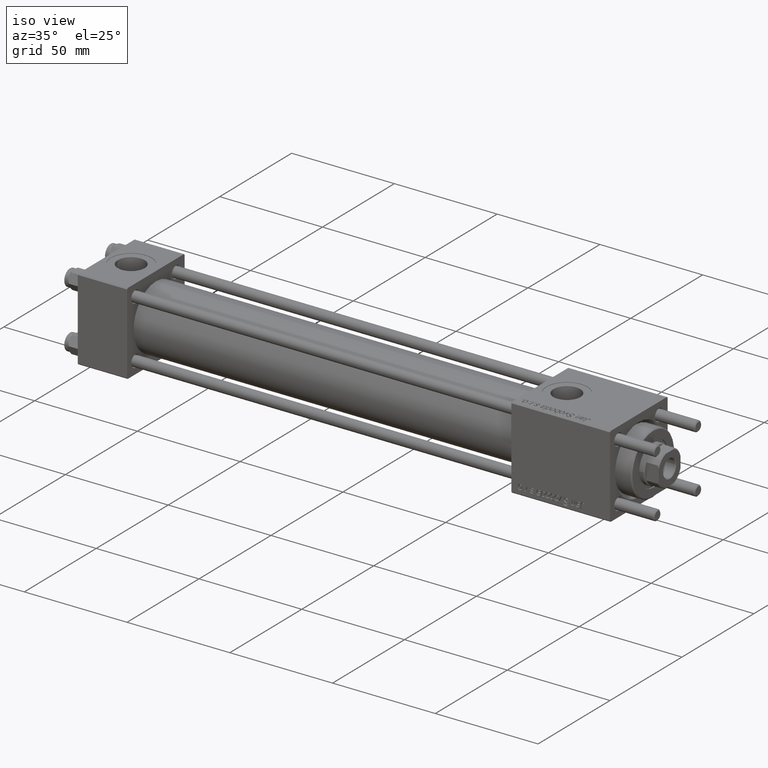
[diagram: clean part render]
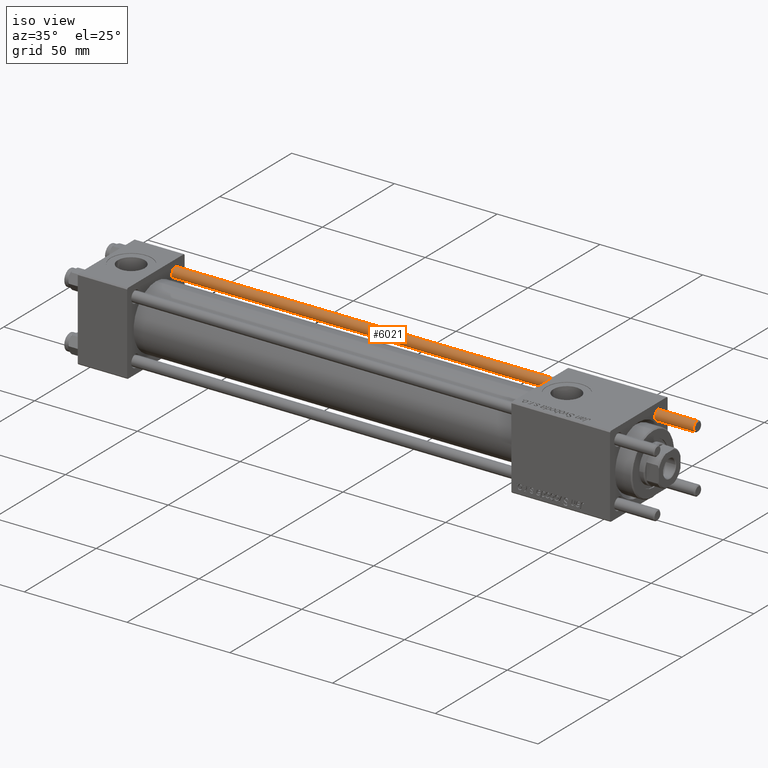
[diagram: same view with one face highlighted and labeled with its STEP entity id]
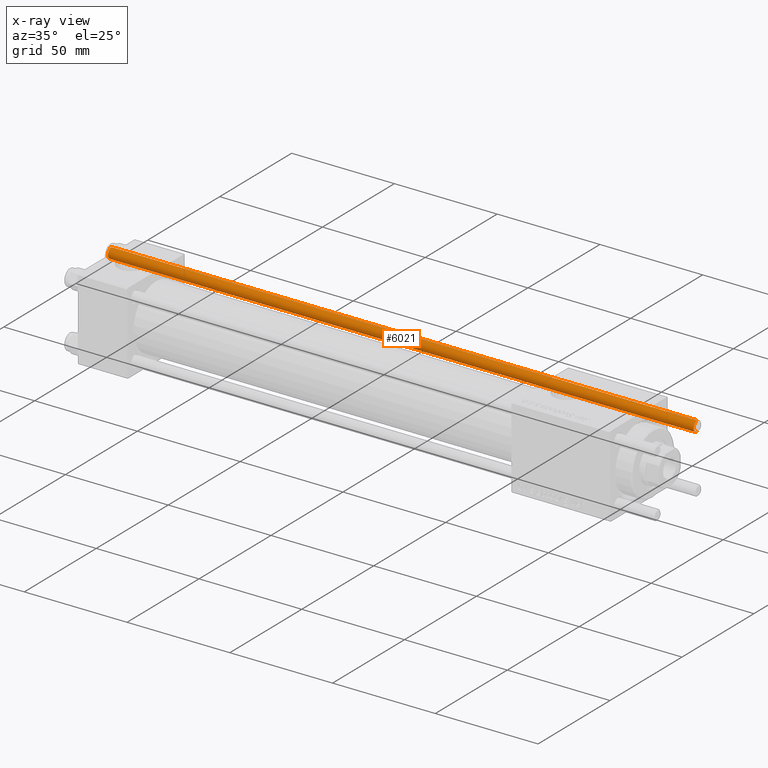
[diagram: x-ray of the same camera — body ghosted, the highlighted face saturated]
A machine part, iso view. The second image highlights one B-rep face of the part: STEP entity #6021.
The next image is the same camera in x-ray: the body ghosted, the highlighted face saturated — about 0% of this face is hidden behind the body in this view.
In plain terms, the highlighted cylindrical surface (edge-blend (fillet) strip) has radius 2.5 mm, axis along (1, -0, -0).
Its self-contained STEP definition (entity closure, byte-faithful):
#3072 = VERTEX_POINT ( 'NONE', #22778 ) ;
#4381 = ORIENTED_EDGE ( 'NONE', *, *, #10890, .T. ) ;
#5336 = EDGE_LOOP ( 'NONE', ( #15496, #4381, #50190, #16356 ) ) ;
#6021 = ADVANCED_FACE ( 'NONE', ( #41979 ), #37671, .T. ) ;
#7095 = DIRECTION ( 'NONE',  ( 1.000000000000000000, 0.000000000000000000, 0.000000000000000000 ) ) ;
#7249 = AXIS2_PLACEMENT_3D ( 'NONE', #42380, #37202, #7095 ) ;
#9975 = VERTEX_POINT ( 'NONE', #27459 ) ;
#10890 = EDGE_CURVE ( 'NONE', #38760, #28191, #41105, .T. ) ;
#10991 = CARTESIAN_POINT ( 'NONE',  ( 2.500000000000000000, 3.061616997868383141E-16, 285.4999999999999432 ) ) ;
#12110 = CARTESIAN_POINT ( 'NONE',  ( 2.500000000000000000, 3.061616997868383141E-16, 286.0000000000000000 ) ) ;
#13340 = EDGE_CURVE ( 'NONE', #38760, #9975, #25854, .T. ) ;
#15496 = ORIENTED_EDGE ( 'NONE', *, *, #13340, .F. ) ;
#16356 = ORIENTED_EDGE ( 'NONE', *, *, #55794, .T. ) ;
#16907 = CARTESIAN_POINT ( 'NONE',  ( -2.500000000000000000, 0.000000000000000000, 286.0000000000000000 ) ) ;
#17466 = DIRECTION ( 'NONE',  ( -0.000000000000000000, -0.000000000000000000, -1.000000000000000000 ) ) ;
#20191 = CARTESIAN_POINT ( 'NONE',  ( 0.000000000000000000, 0.000000000000000000, 0.4999999999999449329 ) ) ;
#21545 = DIRECTION ( 'NONE',  ( -0.000000000000000000, -0.000000000000000000, -1.000000000000000000 ) ) ;
#21991 = VECTOR ( 'NONE', #21545, 1000.000000000000000 ) ;
#22778 = CARTESIAN_POINT ( 'NONE',  ( -2.500000000000000000, 0.000000000000000000, 0.4999999999999449329 ) ) ;
#25779 = LINE ( 'NONE', #16907, #44463 ) ;
#25854 = LINE ( 'NONE', #12110, #21991 ) ;
#27459 = CARTESIAN_POINT ( 'NONE',  ( 2.500000000000000000, 3.061616997868383141E-16, 0.4999999999999449329 ) ) ;
#28191 = VERTEX_POINT ( 'NONE', #51040 ) ;
#29631 = DIRECTION ( 'NONE',  ( -0.000000000000000000, -0.000000000000000000, -1.000000000000000000 ) ) ;
#37202 = DIRECTION ( 'NONE',  ( 0.000000000000000000, 0.000000000000000000, -1.000000000000000000 ) ) ;
#37671 = CYLINDRICAL_SURFACE ( 'NONE', #55639, 2.500000000000000000 ) ;
#37677 = DIRECTION ( 'NONE',  ( -0.000000000000000000, -0.000000000000000000, 1.000000000000000000 ) ) ;
#38760 = VERTEX_POINT ( 'NONE', #10991 ) ;
#40085 = AXIS2_PLACEMENT_3D ( 'NONE', #20191, #37677, #42560 ) ;
#41105 = CIRCLE ( 'NONE', #7249, 2.500000000000000000 ) ;
#41979 = FACE_OUTER_BOUND ( 'NONE', #5336, .T. ) ;
#42380 = CARTESIAN_POINT ( 'NONE',  ( 0.000000000000000000, 0.000000000000000000, 285.4999999999999432 ) ) ;
#42560 = DIRECTION ( 'NONE',  ( 1.000000000000000000, 0.000000000000000000, 0.000000000000000000 ) ) ;
#44463 = VECTOR ( 'NONE', #17466, 1000.000000000000000 ) ;
#49405 = EDGE_CURVE ( 'NONE', #28191, #3072, #25779, .T. ) ;
#50190 = ORIENTED_EDGE ( 'NONE', *, *, #49405, .T. ) ;
#51040 = CARTESIAN_POINT ( 'NONE',  ( -2.500000000000000000, 0.000000000000000000, 285.4999999999999432 ) ) ;
#51439 = CARTESIAN_POINT ( 'NONE',  ( 0.000000000000000000, 0.000000000000000000, 286.0000000000000000 ) ) ;
#52882 = CIRCLE ( 'NONE', #40085, 2.500000000000000000 ) ;
#53820 = DIRECTION ( 'NONE',  ( -1.000000000000000000, 0.000000000000000000, 0.000000000000000000 ) ) ;
#55639 = AXIS2_PLACEMENT_3D ( 'NONE', #51439, #29631, #53820 ) ;
#55794 = EDGE_CURVE ( 'NONE', #3072, #9975, #52882, .T. ) ;